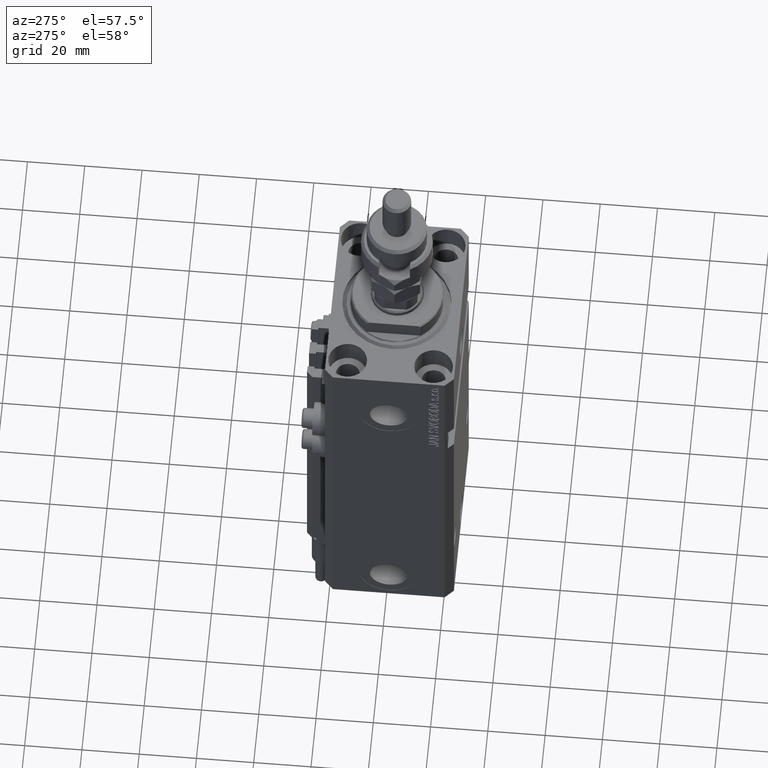
[diagram: clean part render]
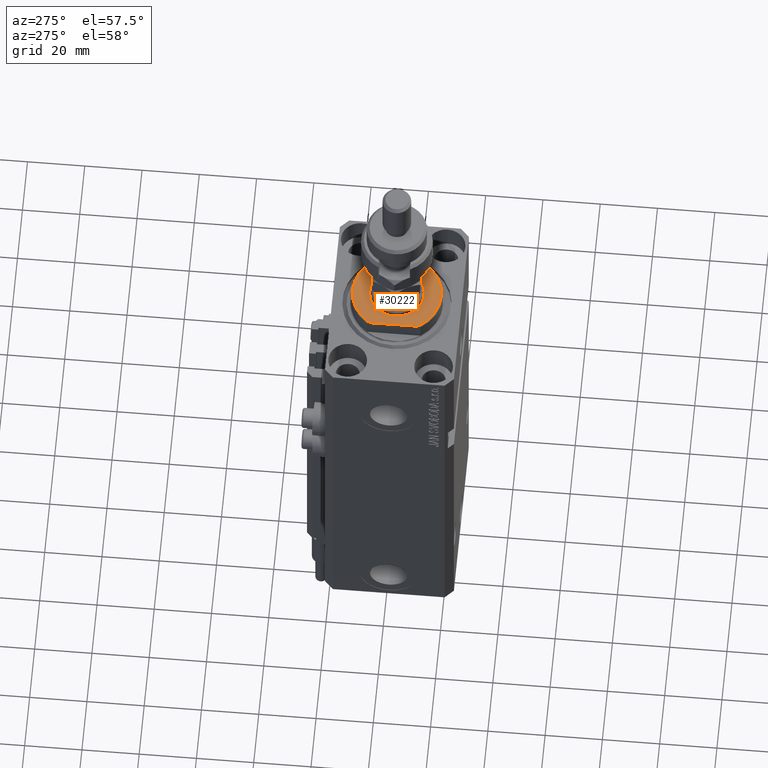
[diagram: same view with one face highlighted and labeled with its STEP entity id]
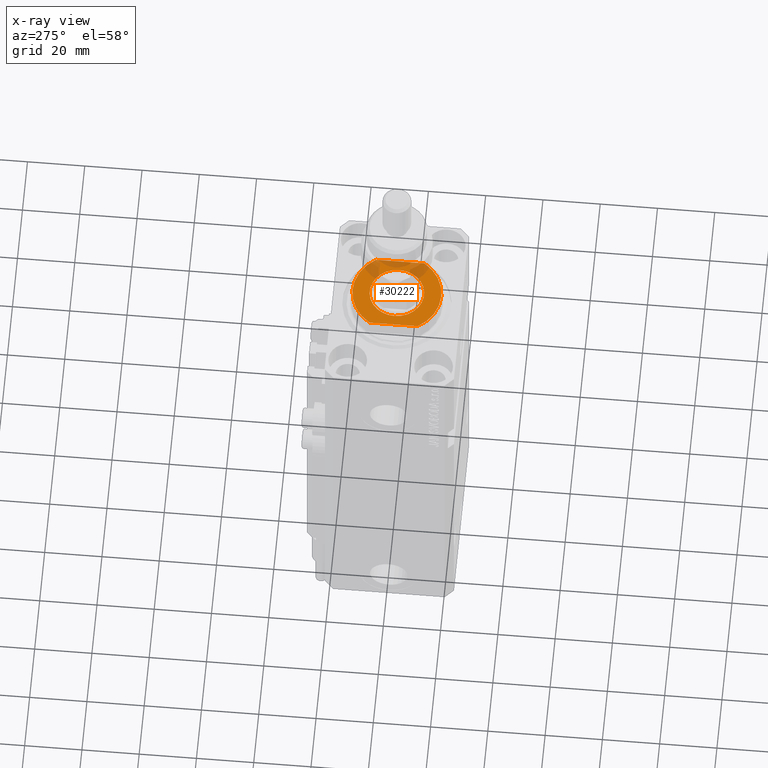
[diagram: x-ray of the same camera — body ghosted, the highlighted face saturated]
A machine part, auxiliary view. The second image highlights one B-rep face of the part: STEP entity #30222.
The next image is the same camera in x-ray: the body ghosted, the highlighted face saturated — about 19% of this face is hidden behind the body in this view.
In plain terms, the highlighted planar face has unit normal (0, 0, 1).
Its self-contained STEP definition (entity closure, byte-faithful):
#652 = CARTESIAN_POINT ( 'NONE',  ( 13.00000000000000000, -8.440971508067139695, -6.500000000000000000 ) ) ;
#1219 = AXIS2_PLACEMENT_3D ( 'NONE', #8598, #24582, #16714 ) ;
#1272 = AXIS2_PLACEMENT_3D ( 'NONE', #35955, #4992, #48264 ) ;
#1661 = ORIENTED_EDGE ( 'NONE', *, *, #39961, .T. ) ;
#2388 = CARTESIAN_POINT ( 'NONE',  ( -13.00000000000000000, -8.440971508067139695, -6.500000000000000000 ) ) ;
#2921 = CARTESIAN_POINT ( 'NONE',  ( -13.00000000000000000, -43.08131845707602992, -6.500000000000000000 ) ) ;
#4378 = AXIS2_PLACEMENT_3D ( 'NONE', #22575, #46964, #10523 ) ;
#4992 = DIRECTION ( 'NONE',  ( -0.000000000000000000, -0.000000000000000000, 1.000000000000000000 ) ) ;
#7786 = VECTOR ( 'NONE', #14973, 1000.000000000000000 ) ;
#8598 = CARTESIAN_POINT ( 'NONE',  ( 0.000000000000000000, 0.000000000000000000, -6.500000000000000000 ) ) ;
#8725 = DIRECTION ( 'NONE',  ( 0.000000000000000000, -1.000000000000000000, -0.000000000000000000 ) ) ;
#10292 = VERTEX_POINT ( 'NONE', #18633 ) ;
#10523 = DIRECTION ( 'NONE',  ( -1.000000000000000000, 0.000000000000000000, -0.000000000000000000 ) ) ;
#14077 = VERTEX_POINT ( 'NONE', #2388 ) ;
#14973 = DIRECTION ( 'NONE',  ( -0.000000000000000000, -1.000000000000000000, -0.000000000000000000 ) ) ;
#15016 = ORIENTED_EDGE ( 'NONE', *, *, #40032, .T. ) ;
#16491 = EDGE_CURVE ( 'NONE', #18477, #36113, #17945, .T. ) ;
#16714 = DIRECTION ( 'NONE',  ( -1.000000000000000000, 0.000000000000000000, 0.000000000000000000 ) ) ;
#16839 = CARTESIAN_POINT ( 'NONE',  ( 13.00000000000000000, -43.08131845707602992, -6.500000000000000000 ) ) ;
#17218 = VERTEX_POINT ( 'NONE', #652 ) ;
#17627 = ORIENTED_EDGE ( 'NONE', *, *, #31246, .F. ) ;
#17945 = CIRCLE ( 'NONE', #1219, 9.500000000000015987 ) ;
#18419 = EDGE_CURVE ( 'NONE', #10292, #17218, #44651, .T. ) ;
#18477 = VERTEX_POINT ( 'NONE', #38094 ) ;
#18633 = CARTESIAN_POINT ( 'NONE',  ( 13.00000000000000000, 8.440971508067139695, -6.500000000000000000 ) ) ;
#18736 = CARTESIAN_POINT ( 'NONE',  ( 9.500000000000015987, 1.163414459189987457E-15, -6.500000000000000000 ) ) ;
#18871 = VECTOR ( 'NONE', #8725, 1000.000000000000000 ) ;
#19360 = CARTESIAN_POINT ( 'NONE',  ( 0.000000000000000000, 0.000000000000000000, -6.500000000000000000 ) ) ;
#22575 = CARTESIAN_POINT ( 'NONE',  ( 0.000000000000000000, 0.000000000000000000, -6.500000000000000000 ) ) ;
#24582 = DIRECTION ( 'NONE',  ( -0.000000000000000000, -0.000000000000000000, 1.000000000000000000 ) ) ;
#24931 = ORIENTED_EDGE ( 'NONE', *, *, #16491, .T. ) ;
#25569 = CIRCLE ( 'NONE', #26434, 15.50000000000003730 ) ;
#26434 = AXIS2_PLACEMENT_3D ( 'NONE', #36209, #44070, #48525 ) ;
#26789 = CARTESIAN_POINT ( 'NONE',  ( -13.00000000000000000, 8.440971508067139695, -6.500000000000000000 ) ) ;
#30222 = ADVANCED_FACE ( 'NONE', ( #51433, #31491 ), #47222, .T. ) ;
#31185 = DIRECTION ( 'NONE',  ( 0.000000000000000000, 0.000000000000000000, -1.000000000000000000 ) ) ;
#31246 = EDGE_CURVE ( 'NONE', #42257, #14077, #51700, .T. ) ;
#31491 = FACE_OUTER_BOUND ( 'NONE', #34336, .T. ) ;
#33603 = ORIENTED_EDGE ( 'NONE', *, *, #41786, .T. ) ;
#34336 = EDGE_LOOP ( 'NONE', ( #33603, #48028, #1661, #17627 ) ) ;
#35955 = CARTESIAN_POINT ( 'NONE',  ( 0.000000000000000000, 0.000000000000000000, -6.500000000000000000 ) ) ;
#36113 = VERTEX_POINT ( 'NONE', #18736 ) ;
#36209 = CARTESIAN_POINT ( 'NONE',  ( 0.000000000000000000, 0.000000000000000000, -6.500000000000000000 ) ) ;
#38094 = CARTESIAN_POINT ( 'NONE',  ( -9.500000000000015987, 0.000000000000000000, -6.500000000000000000 ) ) ;
#39961 = EDGE_CURVE ( 'NONE', #17218, #14077, #25569, .T. ) ;
#40032 = EDGE_CURVE ( 'NONE', #36113, #18477, #50695, .T. ) ;
#41786 = EDGE_CURVE ( 'NONE', #42257, #10292, #44925, .T. ) ;
#41988 = EDGE_LOOP ( 'NONE', ( #24931, #15016 ) ) ;
#42257 = VERTEX_POINT ( 'NONE', #26789 ) ;
#44070 = DIRECTION ( 'NONE',  ( 0.000000000000000000, 0.000000000000000000, -1.000000000000000000 ) ) ;
#44651 = LINE ( 'NONE', #16839, #18871 ) ;
#44925 = CIRCLE ( 'NONE', #51640, 15.50000000000003730 ) ;
#46964 = DIRECTION ( 'NONE',  ( 0.000000000000000000, 0.000000000000000000, -1.000000000000000000 ) ) ;
#47222 = PLANE ( 'NONE',  #4378 ) ;
#48028 = ORIENTED_EDGE ( 'NONE', *, *, #18419, .T. ) ;
#48264 = DIRECTION ( 'NONE',  ( -1.000000000000000000, 0.000000000000000000, 0.000000000000000000 ) ) ;
#48525 = DIRECTION ( 'NONE',  ( -1.000000000000000000, 0.000000000000000000, 0.000000000000000000 ) ) ;
#50695 = CIRCLE ( 'NONE', #1272, 9.500000000000015987 ) ;
#51433 = FACE_BOUND ( 'NONE', #41988, .T. ) ;
#51640 = AXIS2_PLACEMENT_3D ( 'NONE', #19360, #31185, #51903 ) ;
#51700 = LINE ( 'NONE', #2921, #7786 ) ;
#51903 = DIRECTION ( 'NONE',  ( -1.000000000000000000, 0.000000000000000000, 0.000000000000000000 ) ) ;